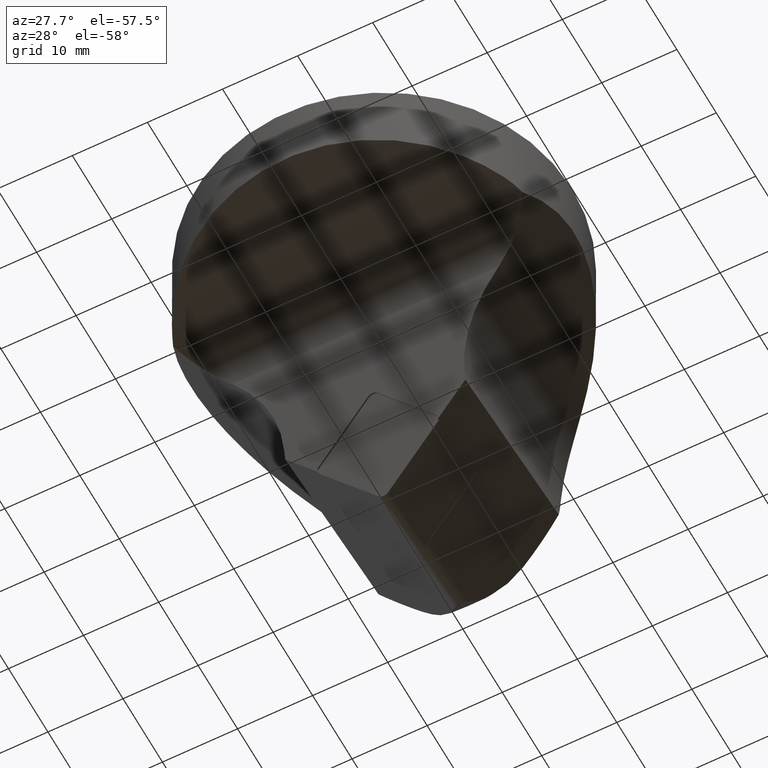
[diagram: clean part render]
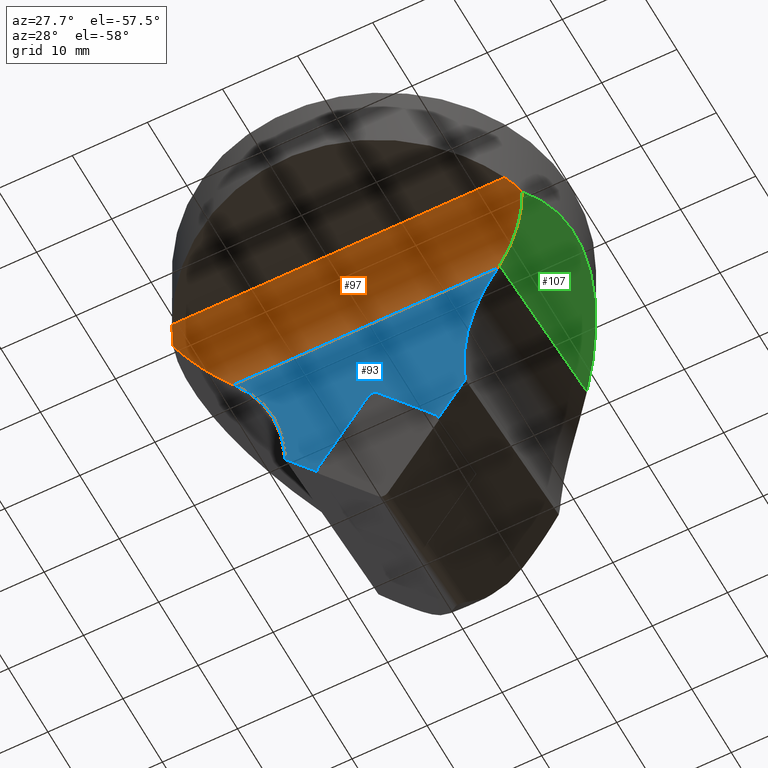
[diagram: same view with three faces highlighted in distinct colors, each labeled with its STEP entity id]
A machine part, auxiliary view with three faces highlighted in distinct colors.
Their STEP definitions:

[orange] entity #97 — the highlighted cylindrical surface (partial cylindrical patch) has radius 8 mm, axis along (1, -0, -0).
#97=ADVANCED_FACE('',(#157),#158,.F.);
#157=FACE_OUTER_BOUND('',#232,.T.);
#158=CYLINDRICAL_SURFACE('',#233,8.0);
#232=EDGE_LOOP('',(#447,#448,#449,#450,#451,#452,#453,#454));
#233=AXIS2_PLACEMENT_3D('',#455,#456,#457);
#447=ORIENTED_EDGE('',*,*,#643,.T.);
#448=ORIENTED_EDGE('',*,*,#644,.F.);
#449=ORIENTED_EDGE('',*,*,#645,.T.);
#450=ORIENTED_EDGE('',*,*,#646,.F.);
#451=ORIENTED_EDGE('',*,*,#647,.T.);
#452=ORIENTED_EDGE('',*,*,#648,.T.);
#453=ORIENTED_EDGE('',*,*,#630,.T.);
#454=ORIENTED_EDGE('',*,*,#649,.F.);
#455=CARTESIAN_POINT('',(-8.02136946993825E-014,-12.5543725397166,-19.5904293288564));
#456=DIRECTION('',(1.0,-0.0,-0.0));
#457=DIRECTION('',(0.0,0.700909264299851,0.713250449154181));
#630=EDGE_CURVE('',#768,#766,#769,.T.);
#643=EDGE_CURVE('',#790,#791,#792,.T.);
#644=EDGE_CURVE('',#793,#791,#794,.T.);
#645=EDGE_CURVE('',#793,#795,#796,.T.);
#646=EDGE_CURVE('',#797,#795,#798,.T.);
#647=EDGE_CURVE('',#797,#799,#800,.T.);
#648=EDGE_CURVE('',#799,#768,#801,.F.);
#649=EDGE_CURVE('',#790,#766,#802,.T.);
#766=VERTEX_POINT('',#968);
#768=VERTEX_POINT('',#970);
#769=LINE('',#971,#972);
#790=VERTEX_POINT('',#1097);
#791=VERTEX_POINT('',#1098);
#792=ELLIPSE('',#1099,10.4432583146582,8.0);
#793=VERTEX_POINT('',#1100);
#794=B_SPLINE_CURVE_WITH_KNOTS('',3,(#1101,#1102,#1103,#1104,#1105,#1106,#1107,#1108),.UNSPECIFIED.,.F.,.F.,(4,2,2,4),(15.3333521394797,15.8834965270077,17.5259648668027,17.8991800098421),.UNSPECIFIED.);
#795=VERTEX_POINT('',#1109);
#796=LINE('',#1110,#1111);
#797=VERTEX_POINT('',#1112);
#798=B_SPLINE_CURVE_WITH_KNOTS('',3,(#1113,#1114,#1115,#1116,#1117,#1118,#1119,#1120),.UNSPECIFIED.,.F.,.F.,(4,2,2,4),(35.7008661941038,36.0740813371431,37.7165496769381,38.2666940644662),.UNSPECIFIED.);
#799=VERTEX_POINT('',#1121);
#800=ELLIPSE('',#1122,10.4432583146582,8.0);
#801=CIRCLE('',#1123,11.8440955912332);
#802=CIRCLE('',#1124,11.8272585788133);
#968=CARTESIAN_POINT('',(17.6005535844534,-4.632227989784,-18.4770445211758));
#970=CARTESIAN_POINT('',(-17.6005535844534,-4.632227989784,-18.4770445211758));
#971=CARTESIAN_POINT('',(-17.6005535844534,-4.632227989784,-18.4770445211758));
#972=VECTOR('',#1331,35.2011071689068);
#1097=CARTESIAN_POINT('',(17.8488889220256,-4.67967322175071,-18.1800709872892));
#1098=CARTESIAN_POINT('',(23.2430439103366,-9.20656883871416,-12.3246045044058));
#1099=AXIS2_PLACEMENT_3D('',#1349,#1350,#1351);
#1100=CARTESIAN_POINT('',(22.1566487445034,-11.5794177924754,-11.6500601157258));
#1101=CARTESIAN_POINT('',(22.1566487445034,-11.5794177924754,-11.6500601157258));
#1102=CARTESIAN_POINT('',(22.2443475016077,-11.4116105165559,-11.6706642584159));
#1103=CARTESIAN_POINT('',(22.3304417868125,-11.2422155506259,-11.696872091892));
#1104=CARTESIAN_POINT('',(22.6655377414272,-10.5638365955184,-11.8247881341029));
#1105=CARTESIAN_POINT('',(22.8981843266979,-10.0482821053824,-11.9738159954399));
#1106=CARTESIAN_POINT('',(23.1526350371495,-9.43242877508046,-12.2237061186684));
#1107=CARTESIAN_POINT('',(23.1984896215698,-9.31905127471625,-12.2727770622855));
#1108=CARTESIAN_POINT('',(23.2430439103366,-9.20656883871416,-12.3246045044058));
#1109=CARTESIAN_POINT('',(-22.1566487445034,-11.5794177924754,-11.6500601157258));
#1110=CARTESIAN_POINT('',(22.1566487445034,-11.5794177924754,-11.6500601157258));
#1111=VECTOR('',#1352,44.3132974890068);
#1112=CARTESIAN_POINT('',(-23.2430439103366,-9.2065688387142,-12.3246045044058));
#1113=CARTESIAN_POINT('',(-23.2430439103366,-9.2065688387142,-12.3246045044058));
#1114=CARTESIAN_POINT('',(-23.1984896215698,-9.31905127471627,-12.2727770622855));
#1115=CARTESIAN_POINT('',(-23.1526350371495,-9.43242877508047,-12.2237061186684));
#1116=CARTESIAN_POINT('',(-22.8981843266979,-10.0482821053824,-11.9738159954399));
#1117=CARTESIAN_POINT('',(-22.6655377414272,-10.5638365955184,-11.8247881341029));
#1118=CARTESIAN_POINT('',(-22.3304417868126,-11.242215550626,-11.696872091892));
#1119=CARTESIAN_POINT('',(-22.2443475016077,-11.4116105165559,-11.6706642584159));
#1120=CARTESIAN_POINT('',(-22.1566487445034,-11.5794177924754,-11.6500601157258));
#1121=CARTESIAN_POINT('',(-17.8488889220255,-4.67967322175071,-18.1800709872892));
#1122=AXIS2_PLACEMENT_3D('',#1353,#1354,#1355);
#1123=AXIS2_PLACEMENT_3D('',#1356,#1357,#1358);
#1124=AXIS2_PLACEMENT_3D('',#1359,#1360,#1361);
#1331=DIRECTION('',(1.0,0.0,0.0));
#1349=CARTESIAN_POINT('',(17.5965829841233,-12.5543725397166,-19.5904293288564));
#1350=DIRECTION('',(0.766044443118978,0.0894587448987839,-0.6365320448553));
#1351=DIRECTION('',(0.64278760968654,-0.106612780622095,0.758589351257642));
#1352=DIRECTION('',(-1.0,0.0,0.0));
#1353=CARTESIAN_POINT('',(-17.5965829841233,-12.5543725397166,-19.5904293288564));
#1354=DIRECTION('',(-0.766044443118978,0.0894587448987836,-0.6365320448553));
#1355=DIRECTION('',(-0.64278760968654,-0.106612780622094,0.758589351257642));
#1356=CARTESIAN_POINT('',(-21.9933530332878,-14.4368103547604,-23.4626315503011));
#1357=DIRECTION('',(0.681589226849637,-0.550502266266045,0.482061594278639));
#1358=DIRECTION('',(0.370885173544692,0.827803380127532,0.420934379558331));
#1359=CARTESIAN_POINT('',(21.9834870364587,-14.4259672874808,-23.4526460339736));
#1360=DIRECTION('',(-0.681758897814939,-0.550113258614782,0.482265702643663));
#1361=DIRECTION('',(-0.34957978169603,0.824050852190687,0.445796107243164));

[blue] entity #93 — the highlighted planar face has unit normal (-0, 0.9903, 0.1392).
#93=ADVANCED_FACE('',(#149),#150,.F.);
#149=FACE_OUTER_BOUND('',#224,.T.);
#150=PLANE('',#225);
#224=EDGE_LOOP('',(#405,#406,#407,#408,#409,#410,#411,#412,#413,#414,#415,#416));
#225=AXIS2_PLACEMENT_3D('',#417,#418,#419);
#405=ORIENTED_EDGE('',*,*,#606,.T.);
#406=ORIENTED_EDGE('',*,*,#617,.T.);
#407=ORIENTED_EDGE('',*,*,#623,.T.);
#408=ORIENTED_EDGE('',*,*,#618,.T.);
#409=ORIENTED_EDGE('',*,*,#609,.T.);
#410=ORIENTED_EDGE('',*,*,#627,.F.);
#411=ORIENTED_EDGE('',*,*,#628,.T.);
#412=ORIENTED_EDGE('',*,*,#629,.F.);
#413=ORIENTED_EDGE('',*,*,#630,.F.);
#414=ORIENTED_EDGE('',*,*,#631,.T.);
#415=ORIENTED_EDGE('',*,*,#632,.T.);
#416=ORIENTED_EDGE('',*,*,#633,.F.);
#417=CARTESIAN_POINT('',(-7.44518453708209E-014,-5.48655820072302,-12.3981692053422));
#418=DIRECTION('',(-1.75285961698736E-016,0.99026806874157,0.139173100960065));
#419=DIRECTION('',(-3.89213021143E-033,-0.139173100960065,0.99026806874157));
#606=EDGE_CURVE('',#730,#728,#731,.T.);
#609=EDGE_CURVE('',#735,#733,#736,.T.);
#617=EDGE_CURVE('',#728,#746,#748,.T.);
#618=EDGE_CURVE('',#749,#735,#750,.T.);
#623=EDGE_CURVE('',#746,#749,#756,.T.);
#627=EDGE_CURVE('',#762,#733,#763,.T.);
#628=EDGE_CURVE('',#762,#764,#765,.T.);
#629=EDGE_CURVE('',#766,#764,#767,.T.);
#630=EDGE_CURVE('',#768,#766,#769,.T.);
#631=EDGE_CURVE('',#768,#770,#771,.F.);
#632=EDGE_CURVE('',#770,#772,#773,.T.);
#633=EDGE_CURVE('',#730,#772,#774,.T.);
#728=VERTEX_POINT('',#912);
#730=VERTEX_POINT('',#915);
#731=CIRCLE('',#916,0.8);
#733=VERTEX_POINT('',#919);
#735=VERTEX_POINT('',#922);
#736=CIRCLE('',#923,0.8);
#746=VERTEX_POINT('',#938);
#748=LINE('',#941,#942);
#749=VERTEX_POINT('',#943);
#750=LINE('',#944,#945);
#756=CIRCLE('',#954,0.8);
#762=VERTEX_POINT('',#962);
#763=LINE('',#963,#964);
#764=VERTEX_POINT('',#965);
#765=LINE('',#966,#967);
#766=VERTEX_POINT('',#968);
#767=CIRCLE('',#969,25.0);
#768=VERTEX_POINT('',#970);
#769=LINE('',#971,#972);
#770=VERTEX_POINT('',#973);
#771=CIRCLE('',#974,25.0);
#772=VERTEX_POINT('',#975);
#773=LINE('',#976,#977);
#774=LINE('',#978,#979);
#912=CARTESIAN_POINT('',(-7.85784601006805,-1.66840713705362,-39.5657256792646));
#915=CARTESIAN_POINT('',(-8.00975442249105,-1.56415174070986,-40.3075413698041));
#916=AXIS2_PLACEMENT_3D('',#1293,#1294,#1295);
#919=CARTESIAN_POINT('',(8.00976230795285,-1.56415300290968,-40.3075323887858));
#922=CARTESIAN_POINT('',(7.85785404670881,-1.66840846800821,-39.5657162090306));
#923=AXIS2_PLACEMENT_3D('',#1298,#1299,#1300);
#938=CARTESIAN_POINT('',(-0.612819493921464,-2.87006754703934,-31.0154675814644));
#941=CARTESIAN_POINT('',(4.1424343539878,-3.65877415504551,-25.4035284630129));
#942=VECTOR('',#1310,10.0);
#943=CARTESIAN_POINT('',(0.61284358304784,-2.8700662148691,-31.0154770603482));
#944=CARTESIAN_POINT('',(-0.519920398693104,-3.05794649756177,-29.6786393854437));
#945=VECTOR('',#1311,10.0);
#954=AXIS2_PLACEMENT_3D('',#1318,#1319,#1320);
#962=CARTESIAN_POINT('',(12.0,-2.22597399833877,-35.5984313162714));
#963=CARTESIAN_POINT('',(12.0,-2.22597399833877,-35.5984313162714));
#964=VECTOR('',#1326,17.2385813969635);
#965=CARTESIAN_POINT('',(12.0,-2.43760684103958,-34.0925853950559));
#966=CARTESIAN_POINT('',(12.0,-2.22597399833877,-35.5984313162714));
#967=VECTOR('',#1327,1.5206447312081);
#968=CARTESIAN_POINT('',(17.6005535844534,-4.632227989784,-18.4770445211758));
#969=AXIS2_PLACEMENT_3D('',#1328,#1329,#1330);
#970=CARTESIAN_POINT('',(-17.6005535844534,-4.632227989784,-18.4770445211758));
#971=CARTESIAN_POINT('',(-17.6005535844534,-4.632227989784,-18.4770445211758));
#972=VECTOR('',#1331,35.2011071689068);
#973=CARTESIAN_POINT('',(-12.0,-2.43760684103958,-34.092585395056));
#974=AXIS2_PLACEMENT_3D('',#1332,#1333,#1334);
#975=CARTESIAN_POINT('',(-12.0,-2.22597404402199,-35.5984309912184));
#976=CARTESIAN_POINT('',(-12.0,-2.43760684103958,-34.092585395056));
#977=VECTOR('',#1335,1.52064440296053);
#978=CARTESIAN_POINT('',(-0.91925319402662,-0.388120901628181,-48.675435594796));
#979=VECTOR('',#1336,17.2385818254602);
#1293=CARTESIAN_POINT('',(-7.24501045556551,-1.59684014113581,-40.0749513151402));
#1294=DIRECTION('',(-1.62630325872826E-016,0.99026806874157,0.139173100960065));
#1295=DIRECTION('',(-0.766044442783564,0.0894587449544153,-0.63653204525114));
#1298=CARTESIAN_POINT('',(7.24501849260938,-1.59684147202354,-40.0749418453819));
#1299=DIRECTION('',(-1.62630325872826E-016,0.99026806874157,0.139173100960065));
#1300=DIRECTION('',(0.766044442624283,-0.0894587449808336,0.636532045439116));
#1310=DIRECTION('',(0.642787609675564,-0.106612780623376,0.758589351266762));
#1311=DIRECTION('',(0.642787609882384,0.106612780599224,-0.758589351094908));
#1318=CARTESIAN_POINT('',(8.02855265324975E-006,-2.79849921895007,-31.5247026962324));
#1319=DIRECTION('',(-1.73472347597681E-016,0.99026806874157,0.139173100960065));
#1320=DIRECTION('',(-0.766054482998246,-0.0894570796575648,0.63652019604835));
#1326=DIRECTION('',(-0.64278760968654,0.106612780622094,-0.758589351257642));
#1327=DIRECTION('',(1.46020040294766E-015,-0.139173100960066,0.99026806874157));
#1328=CARTESIAN_POINT('',(37.0,-2.43760684103958,-34.092585395056));
#1329=DIRECTION('',(-1.30739863379858E-016,-0.99026806874157,-0.139173100960065));
#1330=DIRECTION('',(-0.939692620785908,-0.0476000039374392,0.338691626801826));
#1331=DIRECTION('',(1.0,0.0,0.0));
#1332=CARTESIAN_POINT('',(-37.0,-2.43760684103959,-34.0925853950559));
#1333=DIRECTION('',(3.01270119962282E-016,-0.99026806874157,-0.139173100960065));
#1334=DIRECTION('',(0.939692620785908,-0.0476000039374389,0.338691626801825));
#1335=DIRECTION('',(1.46020071814774E-015,0.139173100960065,-0.99026806874157));
#1336=DIRECTION('',(-0.642787609686539,-0.106612780622094,0.758589351257642));

[green] entity #107 — the highlighted planar face has unit normal (-0.766, -0.0895, 0.6365).
#107=ADVANCED_FACE('',(#178),#179,.F.);
#178=FACE_OUTER_BOUND('',#253,.T.);
#179=PLANE('',#254);
#253=EDGE_LOOP('',(#542,#543,#544));
#254=AXIS2_PLACEMENT_3D('',#545,#546,#547);
#542=ORIENTED_EDGE('',*,*,#665,.F.);
#543=ORIENTED_EDGE('',*,*,#651,.F.);
#544=ORIENTED_EDGE('',*,*,#643,.F.);
#545=CARTESIAN_POINT('',(30.2889693013184,-6.46091839581979,-3.45919940727069));
#546=DIRECTION('',(-0.766044443118978,-0.0894587448987839,0.6365320448553));
#547=DIRECTION('',(0.639094475910371,-7.94553266725585E-018,0.76912824084209));
#643=EDGE_CURVE('',#790,#791,#792,.T.);
#651=EDGE_CURVE('',#791,#805,#806,.T.);
#665=EDGE_CURVE('',#805,#790,#829,.T.);
#790=VERTEX_POINT('',#1097);
#791=VERTEX_POINT('',#1098);
#792=ELLIPSE('',#1099,10.4432583146582,8.0);
#805=VERTEX_POINT('',#1127);
#806=ELLIPSE('',#1128,39.2753203896957,25.0);
#829=LINE('',#1193,#1194);
#1097=CARTESIAN_POINT('',(17.8488889220256,-4.67967322175071,-18.1800709872892));
#1098=CARTESIAN_POINT('',(23.2430439103366,-9.20656883871416,-12.3246045044058));
#1099=AXIS2_PLACEMENT_3D('',#1349,#1350,#1351);
#1127=CARTESIAN_POINT('',(17.8488889220255,17.5047754698309,-15.0622500507619));
#1128=AXIS2_PLACEMENT_3D('',#1365,#1366,#1367);
#1193=CARTESIAN_POINT('',(17.8488889220255,17.5047754698309,-15.0622500507619));
#1194=VECTOR('',#1390,22.4024679698837);
#1349=CARTESIAN_POINT('',(17.5965829841233,-12.5543725397166,-19.5904293288564));
#1350=DIRECTION('',(0.766044443118978,0.0894587448987839,-0.6365320448553));
#1351=DIRECTION('',(0.64278760968654,-0.106612780622095,0.758589351257642));
#1365=CARTESIAN_POINT('',(-1.28315796145698E-014,-1.6614132045817E-014,-39.0029102908852));
#1366=DIRECTION('',(-0.766044443118978,-0.0894587448987839,0.6365320448553));
#1367=DIRECTION('',(-0.632235558631112,-0.0738325302971182,-0.771250255022538));
#1390=DIRECTION('',(9.91161354291556E-017,-0.99026806874157,-0.139173100960065));